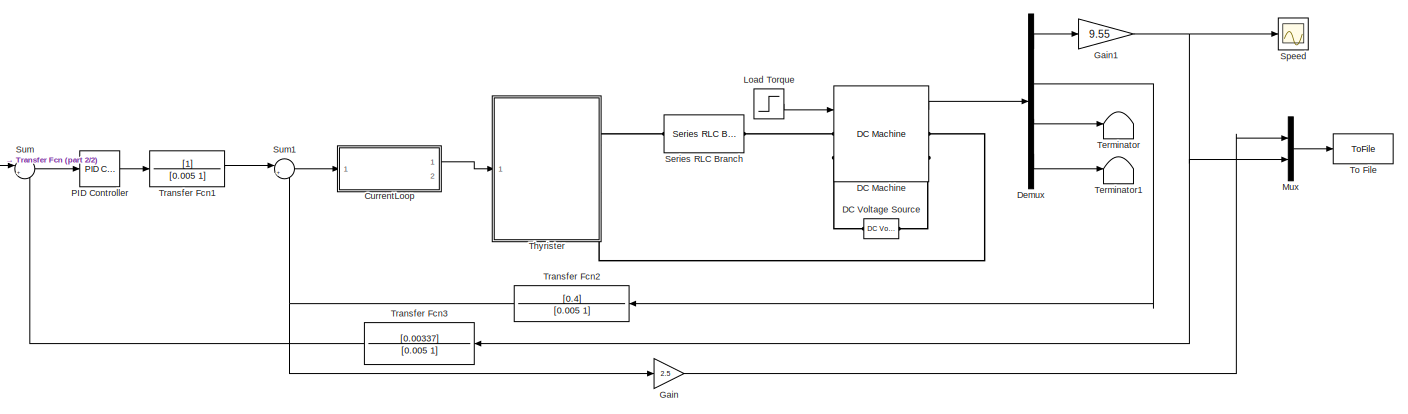
[diagram: root canvas - part 1/2, most of the canvas]
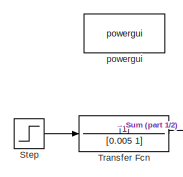
[diagram: root canvas - part 2/2, middle left region]
MODEL slx_84bfb53d7396
KIND model
CONFIG AbsTol = auto
CONFIG EnableMultiTasking = off
CONFIG FixedStep = auto
CONFIG MaxStep = 5e-005
CONFIG MinStep = auto
CONFIG RelTol = 1e-3
CONFIG SampleTimeConstraint = Unconstrained
CONFIG Solver = ode23tb
CONFIG SolverName = ode23tb
CONFIG StartTime = 0.0
CONFIG StopTime = 5.0
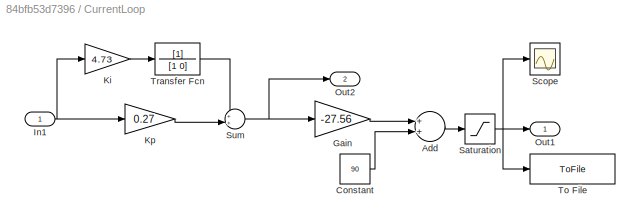
BLOCK [SubSystem] CurrentLoop 
  Ports = [1, 2]
  RequestExecContextInheritance = off
BLOCK [Sum] CurrentLoop /Add
  InputSameDT = off
  OutDataTypeStr = Inherit: Inherit via internal rule
  Ports = [2, 1]
  SaturateOnIntegerOverflow = off
BLOCK [Constant] CurrentLoop /Constant
  Value = 90
BLOCK [Gain] CurrentLoop /Gain
  Gain = -27.56
  OutDataTypeStr = Inherit: Inherit via internal rule
  ParamDataTypeStr = Inherit: Inherit via internal rule
  SaturateOnIntegerOverflow = off
BLOCK [Inport] CurrentLoop /In1
  IconDisplay = Port number
BLOCK [Gain] CurrentLoop /Ki
  Gain = 4.73
  OutDataTypeStr = Inherit: Inherit via internal rule
  ParamDataTypeStr = Inherit: Inherit via internal rule
  SaturateOnIntegerOverflow = off
BLOCK [Gain] CurrentLoop /Kp
  Gain = 0.27
  OutDataTypeStr = Inherit: Inherit via internal rule
  ParamDataTypeStr = Inherit: Inherit via internal rule
  SaturateOnIntegerOverflow = off
BLOCK [Outport] CurrentLoop /Out1
  IconDisplay = Port number
BLOCK [Outport] CurrentLoop /Out2
  IconDisplay = Port number
  Port = 2
BLOCK [Saturate] CurrentLoop /Saturation
  InputPortMap = u0
  LowerLimit = 0
  Ports = [1, 1]
  UpperLimit = 90
BLOCK [Scope] CurrentLoop /Scope
  Floating = off
  NumInputPorts = 1
  Ports = [1]
  ScopeSpecificationString = Simulink.scopes.TimeScopeBlockCfg('CurrentConfiguration', extmgr.ConfigurationSet(extmgr.Configuration('Core','General UI',true),extmgr.Configuration('Core','Source UI',true),extmgr.Configuration('Sources','WiredSimulink',true),extmgr.Configuration('Visuals','Time Domain',true),extmgr.Configuration('Tools','Plot Navigation',true),extmgr.Configuration('Tools','Measurements',true)),'Version','2018a'...<+1ch>
BLOCK [Sum] CurrentLoop /Sum
  IconShape = round
  InputSameDT = off
  Inputs = ++|
  OutDataTypeStr = Inherit: Inherit via internal rule
  Ports = [2, 1]
  SaturateOnIntegerOverflow = off
BLOCK [ToFile] CurrentLoop /To File
  Filename = 2_sim_current.mat
  MatrixName = signals
  Ports = [1]
BLOCK [TransferFcn] CurrentLoop /Transfer Fcn
  Denominator = [1 0]
BLOCK [Reference] DC Machine  REF=powerlib/Machines/DC Machine
  Ports = [1, 1, 0, 0, 0, 2, 2]
  SourceBlock = powerlib/Machines/DC Machine
  SourceProductBaseCode = PS
  SourceProductName = Simscape Power Systems
  SourceType = DC machine
BLOCK [Reference] DC Voltage Source  REF=powerlib/Electrical
Sources/DC Voltage Source
  Ports = [0, 0, 0, 0, 0, 1, 1]
  SourceBlock = powerlib/Electrical\nSources/DC Voltage Source
  SourceProductBaseCode = PS
  SourceProductName = Simscape Power Systems
  SourceType = DC Voltage Source
BLOCK [Demux] Demux
  DisplayOption = bar
  Ports = [1, 4]
BLOCK [Gain] Gain
  Gain = 2.5
  OutDataTypeStr = Inherit: Inherit via internal rule
  ParamDataTypeStr = Inherit: Inherit via internal rule
  SaturateOnIntegerOverflow = off
BLOCK [Gain] Gain1
  Gain = 9.55
  OutDataTypeStr = Inherit: Inherit via internal rule
  ParamDataTypeStr = Inherit: Inherit via internal rule
  SaturateOnIntegerOverflow = off
BLOCK [Step] Load Torque
  After = 18
  Before = 10
  SampleTime = 0
  Time = 3
BLOCK [Mux] Mux
  DisplayOption = bar
  Inputs = 2
  Ports = [2, 1]
BLOCK [Reference] PID Controller  REF=simulink/Continuous/PID Controller
  Ports = [1, 1]
  SourceBlock = simulink/Continuous/PID Controller
  SourceProductBaseCode = SL
  SourceProductName = Simulink
  SourceType = PID 1dof
BLOCK [Reference] Series RLC Branch  REF=powerlib/Elements/Series RLC Branch
  Ports = [0, 0, 0, 0, 0, 1, 1]
  SourceBlock = powerlib/Elements/Series RLC Branch
  SourceProductBaseCode = PS
  SourceProductName = Simscape Power Systems
  SourceType = Series RLC Branch
BLOCK [Scope] Speed
  Floating = off
  NumInputPorts = 1
  Ports = [1]
  ScopeSpecificationString = Simulink.scopes.TimeScopeBlockCfg('CurrentConfiguration', extmgr.ConfigurationSet(extmgr.Configuration('Core','General UI',true),extmgr.Configuration('Core','Source UI',true),extmgr.Configuration('Sources','WiredSimulink',true,'DataLoggingVariableName','ScopeData3'),extmgr.Configuration('Visuals','Time Domain',true),extmgr.Configuration('Tools','Plot Navigation',true),extmgr.Configuration('Tools',...<+40ch>
BLOCK [Step] Step
  After = 5
  SampleTime = 0
  Time = 0
BLOCK [Sum] Sum
  IconShape = round
  InputSameDT = off
  Inputs = |+-
  OutDataTypeStr = Inherit: Inherit via internal rule
  Ports = [2, 1]
  SaturateOnIntegerOverflow = off
BLOCK [Sum] Sum1
  IconShape = round
  InputSameDT = off
  Inputs = |+-
  OutDataTypeStr = Inherit: Inherit via internal rule
  Ports = [2, 1]
  SaturateOnIntegerOverflow = off
BLOCK [Terminator] Terminator
BLOCK [Terminator] Terminator1
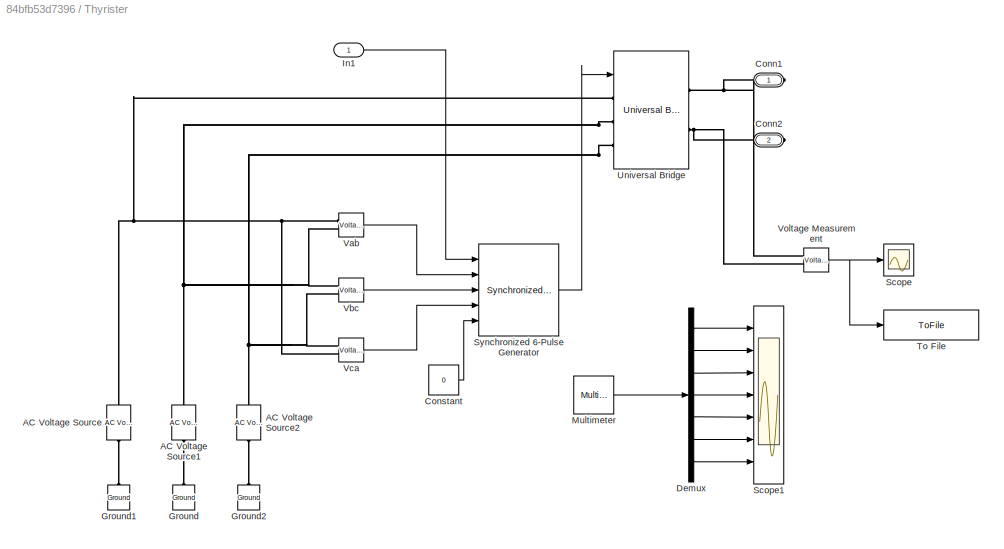
BLOCK [SubSystem] Thyrister
  Ports = [1, 0, 0, 0, 0, 0, 2]
  RequestExecContextInheritance = off
BLOCK [Reference] Thyrister/AC Voltage Source  REF=powerlib/Electrical
Sources/AC Voltage Source
  Ports = [0, 0, 0, 0, 0, 1, 1]
  SourceBlock = powerlib/Electrical\nSources/AC Voltage Source
  SourceProductBaseCode = PS
  SourceProductName = Simscape Power Systems
  SourceType = AC Voltage Source
BLOCK [Reference] Thyrister/AC Voltage Source1  REF=powerlib/Electrical
Sources/AC Voltage Source
  Ports = [0, 0, 0, 0, 0, 1, 1]
  SourceBlock = powerlib/Electrical\nSources/AC Voltage Source
  SourceProductBaseCode = PS
  SourceProductName = Simscape Power Systems
  SourceType = AC Voltage Source
BLOCK [Reference] Thyrister/AC Voltage Source2  REF=powerlib/Electrical
Sources/AC Voltage Source
  Ports = [0, 0, 0, 0, 0, 1, 1]
  SourceBlock = powerlib/Electrical\nSources/AC Voltage Source
  SourceProductBaseCode = PS
  SourceProductName = Simscape Power Systems
  SourceType = AC Voltage Source
BLOCK [PMIOPort] Thyrister/Conn1
  Side = Right
BLOCK [PMIOPort] Thyrister/Conn2
  Port = 2
  Side = Right
BLOCK [Constant] Thyrister/Constant
  Value = 0
BLOCK [Demux] Thyrister/Demux
  DisplayOption = bar
  Outputs = 7
  Ports = [1, 7]
BLOCK [Reference] Thyrister/Ground  REF=powerlib/Elements/Ground
  Ports = [0, 0, 0, 0, 0, 1]
  SourceBlock = powerlib/Elements/Ground
  SourceProductBaseCode = PS
  SourceProductName = Simscape Power Systems
  SourceType = Ground
BLOCK [Reference] Thyrister/Ground1  REF=powerlib/Elements/Ground
  Ports = [0, 0, 0, 0, 0, 1]
  SourceBlock = powerlib/Elements/Ground
  SourceProductBaseCode = PS
  SourceProductName = Simscape Power Systems
  SourceType = Ground
BLOCK [Reference] Thyrister/Ground2  REF=powerlib/Elements/Ground
  Ports = [0, 0, 0, 0, 0, 1]
  SourceBlock = powerlib/Elements/Ground
  SourceProductBaseCode = PS
  SourceProductName = Simscape Power Systems
  SourceType = Ground
BLOCK [Inport] Thyrister/In1
  IconDisplay = Port number
BLOCK [Reference] Thyrister/Multimeter  REF=powerlib/Measurements/Multimeter
  Ports = [0, 1]
  SourceBlock = powerlib/Measurements/Multimeter
  SourceProductBaseCode = PS
  SourceProductName = Simscape Power Systems
  SourceType = MultimeterPSB
BLOCK [Scope] Thyrister/Scope
  Floating = off
  NumInputPorts = 1
  Ports = [1]
  ScopeSpecificationString = Simulink.scopes.TimeScopeBlockCfg('CurrentConfiguration', extmgr.ConfigurationSet(extmgr.Configuration('Core','General UI',true),extmgr.Configuration('Core','Source UI',true),extmgr.Configuration('Sources','WiredSimulink',true,'DataLoggingVariableName','ScopeData1'),extmgr.Configuration('Visuals','Time Domain',true),extmgr.Configuration('Tools','Plot Navigation',true),extmgr.Configuration('Tools',...<+40ch>
BLOCK [Scope] Thyrister/Scope1
  Floating = off
  NumInputPorts = 7
  Ports = [7]
  ScopeSpecificationString = Simulink.scopes.TimeScopeBlockCfg('CurrentConfiguration', extmgr.ConfigurationSet(extmgr.Configuration('Core','General UI',true),extmgr.Configuration('Core','Source UI',true),extmgr.Configuration('Sources','WiredSimulink',true,'DataLoggingVariableName','ScopeData2'),extmgr.Configuration('Visuals','Time Domain',true,'SerializedDisplays',{struct('MinYLimReal','-459.61882','MaxYLimReal','459.6188','Y...<+1438ch>
BLOCK [Reference] Thyrister/Synchronized 6-Pulse Generator  REF=powerlib_extras/Control 
Blocks/Synchronized
6-Pulse Generator
  Ports = [5, 1]
  SourceBlock = powerlib_extras/Control \nBlocks/Synchronized\n6-Pulse Generator
  SourceType = Synchronized 6-pulse generator
BLOCK [ToFile] Thyrister/To File
  Filename = 2_sim_phasecontrol.mat
  MatrixName = signals
  Ports = [1]
BLOCK [Reference] Thyrister/Universal Bridge  REF=powerlib/Power
Electronics/Universal Bridge
  Ports = [1, 0, 0, 0, 0, 3, 2]
  SourceBlock = powerlib/Power\nElectronics/Universal Bridge
  SourceProductBaseCode = PS
  SourceProductName = Simscape Power Systems
  SourceType = Universal Bridge
BLOCK [Reference] Thyrister/Vab  REF=powerlib/Measurements/Voltage Measurement
  Ports = [0, 1, 0, 0, 0, 2]
  SourceBlock = powerlib/Measurements/Voltage Measurement
  SourceProductBaseCode = PS
  SourceProductName = Simscape Power Systems
  SourceType = Voltage Measurement
BLOCK [Reference] Thyrister/Vbc  REF=powerlib/Measurements/Voltage Measurement
  Ports = [0, 1, 0, 0, 0, 2]
  SourceBlock = powerlib/Measurements/Voltage Measurement
  SourceProductBaseCode = PS
  SourceProductName = Simscape Power Systems
  SourceType = Voltage Measurement
BLOCK [Reference] Thyrister/Vca  REF=powerlib/Measurements/Voltage Measurement
  Ports = [0, 1, 0, 0, 0, 2]
  SourceBlock = powerlib/Measurements/Voltage Measurement
  SourceProductBaseCode = PS
  SourceProductName = Simscape Power Systems
  SourceType = Voltage Measurement
BLOCK [Reference] Thyrister/Voltage Measurement  REF=powerlib/Measurements/Voltage Measurement
  Ports = [0, 1, 0, 0, 0, 2]
  SourceBlock = powerlib/Measurements/Voltage Measurement
  SourceProductBaseCode = PS
  SourceProductName = Simscape Power Systems
  SourceType = Voltage Measurement
BLOCK [ToFile] To File
  Filename = 2_sim_n_Ia.mat
  MatrixName = signals
  Ports = [1]
BLOCK [TransferFcn] Transfer Fcn
  Denominator = [0.005 1]
BLOCK [TransferFcn] Transfer Fcn1
  Denominator = [0.005 1]
BLOCK [TransferFcn] Transfer Fcn2
  Denominator = [0.005 1]
  Numerator = [0.4]
BLOCK [TransferFcn] Transfer Fcn3
  Denominator = [0.005 1]
  Numerator = [0.00337]
BLOCK [Reference] powergui  REF=powerlib/powergui
  Ports = []
  Priority = 1
  SourceBlock = powerlib/powergui
  SourceProductBaseCode = PS
  SourceProductName = Simscape Power Systems
  SourceType = PSB option menu block
LINE CurrentLoop /Add:1 -> CurrentLoop /Saturation:1
LINE CurrentLoop /Constant:1 -> CurrentLoop /Add:2
LINE CurrentLoop /Gain:1 -> CurrentLoop /Add:1
NET CurrentLoop /In1:1 -> CurrentLoop /Ki:1, CurrentLoop /Kp:1
LINE CurrentLoop /Ki:1 -> CurrentLoop /Transfer Fcn:1
LINE CurrentLoop /Kp:1 -> CurrentLoop /Sum:2
NET CurrentLoop /Saturation:1 -> CurrentLoop /Out1:1, CurrentLoop /Scope:1, CurrentLoop /To File:1
NET CurrentLoop /Sum:1 -> CurrentLoop /Gain:1, CurrentLoop /Out2:1
LINE CurrentLoop /Transfer Fcn:1 -> CurrentLoop /Sum:1
LINE CurrentLoop :1 -> Thyrister:1
LINE DC Machine:1 -> Demux:1
LINE Demux:1 -> Gain1:1
LINE Demux:2 -> Transfer Fcn2:1
LINE Demux:3 -> Terminator:1
LINE Demux:4 -> Terminator1:1
NET Gain1:1 -> Mux:2, Speed:1, Transfer Fcn3:1
LINE Gain:1 -> Mux:1
LINE Load Torque:1 -> DC Machine:1
LINE Mux:1 -> To File:1
LINE PID Controller:1 -> Transfer Fcn1:1
LINE Step:1 -> Transfer Fcn:1
LINE Sum1:1 -> CurrentLoop :1
LINE Sum:1 -> PID Controller:1
LINE Thyrister/Constant:1 -> Thyrister/Synchronized 6-Pulse Generator:5
LINE Thyrister/Demux:1 -> Thyrister/Scope1:1
LINE Thyrister/Demux:2 -> Thyrister/Scope1:2
LINE Thyrister/Demux:3 -> Thyrister/Scope1:3
LINE Thyrister/Demux:4 -> Thyrister/Scope1:4
LINE Thyrister/Demux:5 -> Thyrister/Scope1:5
LINE Thyrister/Demux:6 -> Thyrister/Scope1:6
LINE Thyrister/Demux:7 -> Thyrister/Scope1:7
LINE Thyrister/In1:1 -> Thyrister/Synchronized 6-Pulse Generator:1
LINE Thyrister/Multimeter:1 -> Thyrister/Demux:1
LINE Thyrister/Synchronized 6-Pulse Generator:1 -> Thyrister/Universal Bridge:1
LINE Thyrister/Vab:1 -> Thyrister/Synchronized 6-Pulse Generator:2
LINE Thyrister/Vbc:1 -> Thyrister/Synchronized 6-Pulse Generator:3
LINE Thyrister/Vca:1 -> Thyrister/Synchronized 6-Pulse Generator:4
NET Thyrister/Voltage Measurement:1 -> Thyrister/Scope:1, Thyrister/To File:1
LINE Transfer Fcn1:1 -> Sum1:1
NET Transfer Fcn2:1 -> Gain:1, Sum1:2
LINE Transfer Fcn3:1 -> Sum:2
LINE Transfer Fcn:1 -> Sum:1
PLINE DC Machine:LConn1 -- Series RLC Branch:RConn1
PLINE DC Machine:LConn2 -- DC Voltage Source:RConn1
PLINE DC Machine:RConn1 -- Thyrister:RConn2
PLINE DC Machine:RConn2 -- DC Voltage Source:LConn1
PLINE Series RLC Branch:LConn1 -- Thyrister:RConn1
PLINE Thyrister/AC Voltage Source1:LConn1 -- Thyrister/Ground:LConn1
PNET net1: Thyrister/AC Voltage Source1:RConn1 -- Thyrister/Universal Bridge:LConn2 -- Thyrister/Vab:LConn2 -- Thyrister/Vbc:LConn1
PLINE Thyrister/AC Voltage Source2:LConn1 -- Thyrister/Ground2:LConn1
PNET net2: Thyrister/AC Voltage Source2:RConn1 -- Thyrister/Universal Bridge:LConn3 -- Thyrister/Vbc:LConn2 -- Thyrister/Vca:LConn1
PLINE Thyrister/AC Voltage Source:LConn1 -- Thyrister/Ground1:LConn1
PNET net3: Thyrister/AC Voltage Source:RConn1 -- Thyrister/Universal Bridge:LConn1 -- Thyrister/Vab:LConn1 -- Thyrister/Vca:LConn2
PNET net4: Thyrister/Conn1:RConn1 -- Thyrister/Universal Bridge:RConn1 -- Thyrister/Voltage Measurement:LConn1
PNET net5: Thyrister/Conn2:RConn1 -- Thyrister/Universal Bridge:RConn2 -- Thyrister/Voltage Measurement:LConn2
note: NET lines group one-source signal fan-out (src -> all destinations, sorted); 1:1 wires keep LINE; PNET lines group multi-terminal physical nets as a canonical sorted terminal list (undirected conserving connections); 2-terminal nets keep the pairwise PLINE form
